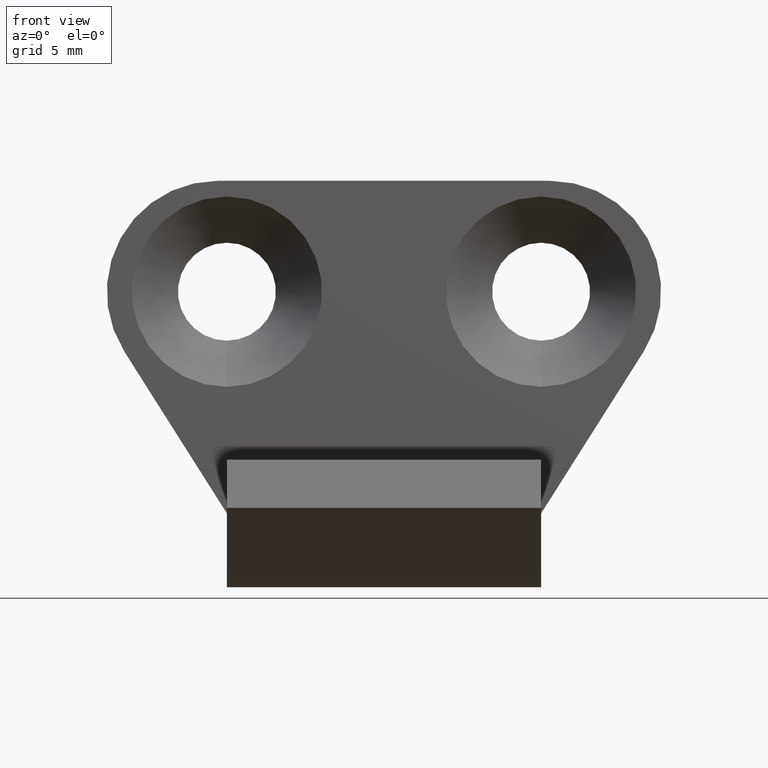
[diagram: clean part render]
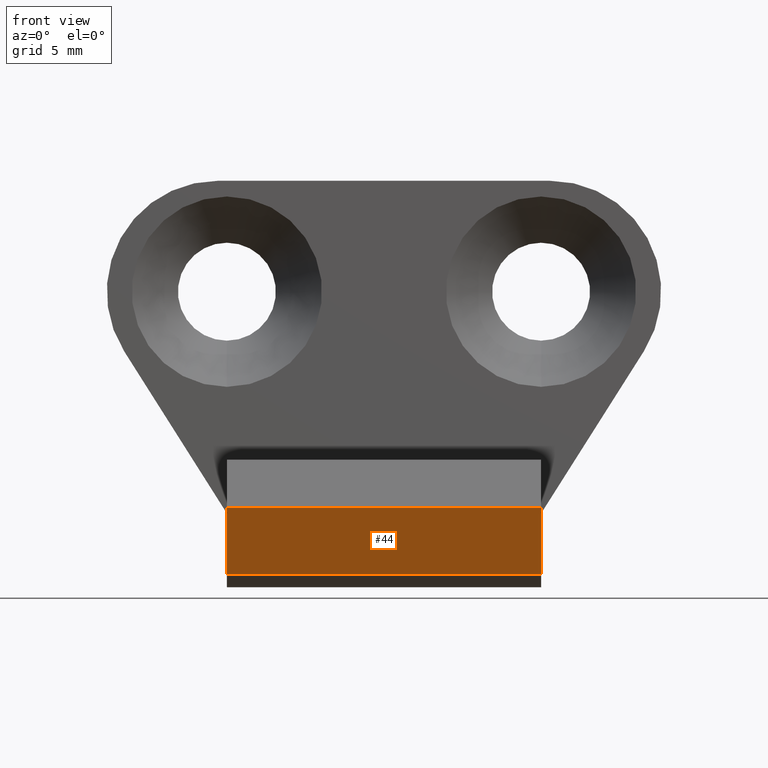
[diagram: same view with one face highlighted and labeled with its STEP entity id]
A machine part, front view. The second image highlights one B-rep face of the part: STEP entity #44.
In plain terms, the highlighted planar face has unit normal (-0, 0.5117, 0.8592).
Its self-contained STEP definition (entity closure, byte-faithful):
#44=ADVANCED_FACE('',(#107),#106,.F.);
#106=PLANE('',#333);
#107=FACE_OUTER_BOUND('',#334,.T.);
#330=CARTESIAN_POINT('',(-1.02000000000E+01,-3.95409323109E+00,-1.56557483553E+01));
#331=DIRECTION('',(-0.00000000000E+00,5.11653314744E-01,8.59191995721E-01));
#332=DIRECTION('',(0.00000000000E+00,-8.59191995721E-01,5.11653314744E-01));
#333=AXIS2_PLACEMENT_3D('',#330,#331,#332);
#334=EDGE_LOOP('',(#480,#481,#482,#483));
#480=ORIENTED_EDGE('',*,*,#597,.T.);
#481=ORIENTED_EDGE('',*,*,#598,.F.);
#482=ORIENTED_EDGE('',*,*,#599,.F.);
#483=ORIENTED_EDGE('',*,*,#595,.T.);
#595=EDGE_CURVE('',#767,#760,#768,.T.);
#597=EDGE_CURVE('',#760,#780,#781,.T.);
#598=EDGE_CURVE('',#787,#780,#788,.T.);
#599=EDGE_CURVE('',#767,#787,#794,.T.);
#760=VERTEX_POINT('',#1112);
#767=VERTEX_POINT('',#1116);
#768=LINE('',#1117,#1118);
#780=VERTEX_POINT('',#1123);
#781=LINE('',#1124,#1125);
#787=VERTEX_POINT('',#1127);
#788=LINE('',#1128,#1129);
#794=LINE('',#1131,#1132);
#1112=CARTESIAN_POINT('',(-8.50000000000E+00,-1.06000000000E+01,-1.16980762114E+01));
#1116=CARTESIAN_POINT('',(8.50000000000E+00,-1.06000000000E+01,-1.16980762114E+01));
#1117=CARTESIAN_POINT('',(8.50000000000E+00,-1.06000000000E+01,-1.16980762114E+01));
#1118=VECTOR('',#1119,1.70000000000E+01);
#1119=DIRECTION('',(-1.00000000000E+00,0.00000000000E+00,0.00000000000E+00));
#1123=CARTESIAN_POINT('',(-8.50000000000E+00,-4.55826657372E+00,-1.52959599786E+01));
#1124=CARTESIAN_POINT('',(-8.50000000000E+00,-1.06000000000E+01,-1.16980762114E+01));
#1125=VECTOR('',#1126,7.03187815572E+00);
#1126=DIRECTION('',(0.00000000000E+00,8.59191995721E-01,-5.11653314744E-01));
#1127=CARTESIAN_POINT('',(8.50000000000E+00,-4.55826657372E+00,-1.52959599786E+01));
#1128=CARTESIAN_POINT('',(8.50000000000E+00,-4.55826657372E+00,-1.52959599786E+01));
#1129=VECTOR('',#1130,1.70000000000E+01);
#1130=DIRECTION('',(-1.00000000000E+00,0.00000000000E+00,0.00000000000E+00));
#1131=CARTESIAN_POINT('',(8.50000000000E+00,-1.06000000000E+01,-1.16980762114E+01));
#1132=VECTOR('',#1133,7.03187815572E+00);
#1133=DIRECTION('',(0.00000000000E+00,8.59191995721E-01,-5.11653314744E-01));